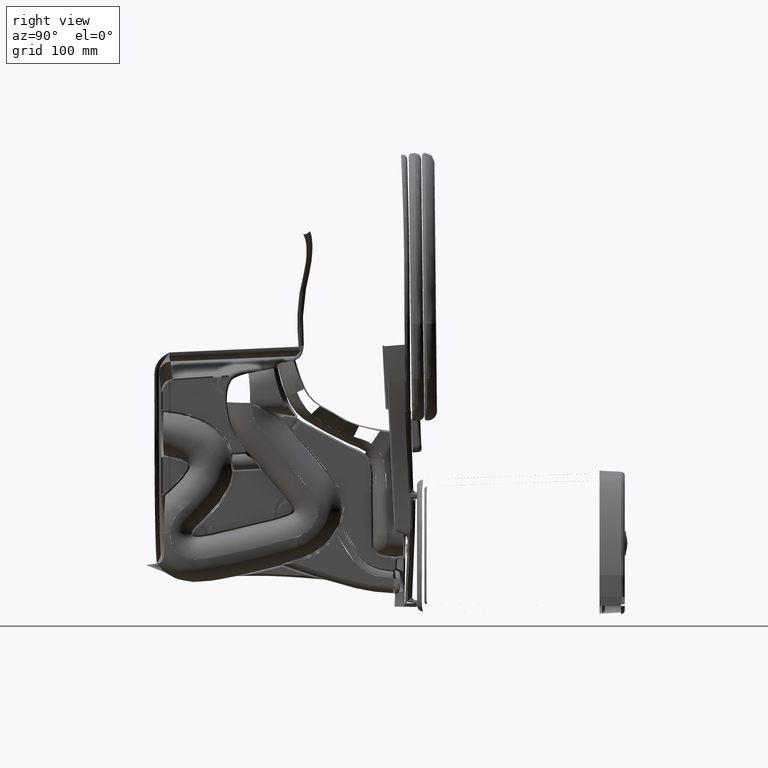
[diagram: clean part render]
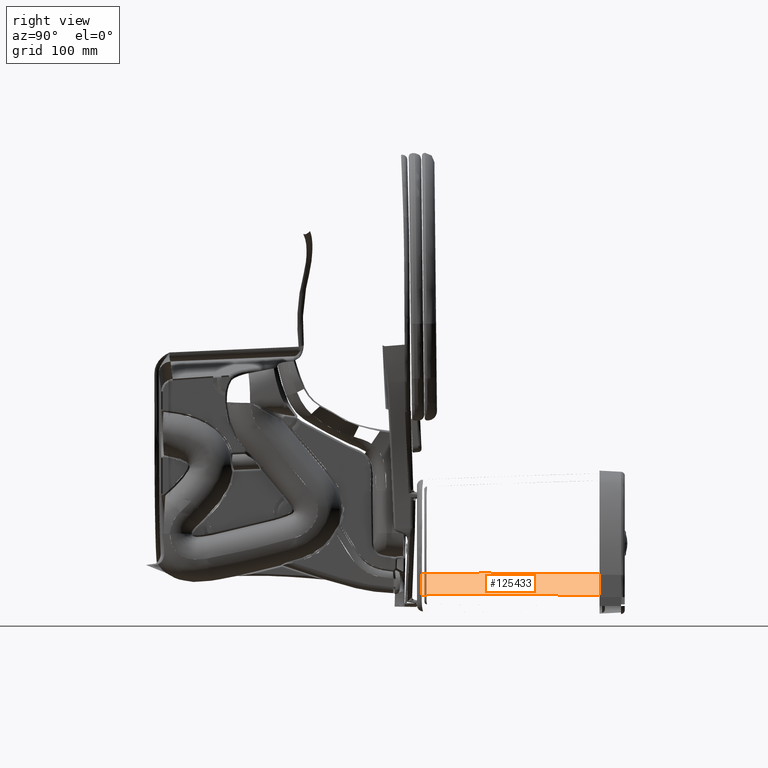
[diagram: same view with one face highlighted and labeled with its STEP entity id]
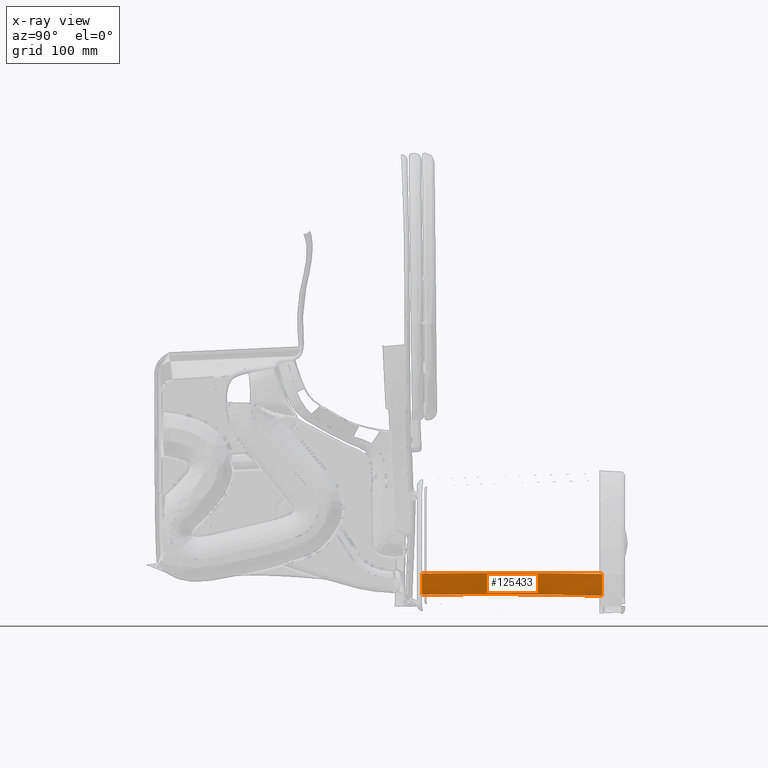
[diagram: x-ray of the same camera — body ghosted, the highlighted face saturated]
A machine part, right view. The second image highlights one B-rep face of the part: STEP entity #125433.
The next image is the same camera in x-ray: the body ghosted, the highlighted face saturated — about 0% of this face is hidden behind the body in this view.
In plain terms, the highlighted face is a freeform B-spline surface patch.
Its self-contained STEP definition (entity closure, byte-faithful):
#2019 = CARTESIAN_POINT ( 'NONE',  ( 8.477269490418109400, 15.78958725036968500, 24.07521670155865900 ) ) ;
#2641 = CARTESIAN_POINT ( 'NONE',  ( 8.870950903418110700, 14.85534883636968600, 29.58341024355866000 ) ) ;
#3946 = CARTESIAN_POINT ( 'NONE',  ( 7.831715338418110400, 14.79968621536968400, 20.21289702055866400 ) ) ;
#4136 = ORIENTED_EDGE ( 'NONE', *, *, #139210, .T. ) ;
#9091 = VERTEX_POINT ( 'NONE', #116583 ) ;
#11198 = CARTESIAN_POINT ( 'NONE',  ( 8.937670803020688800, 15.84088755209015500, 29.51387461043780600 ) ) ;
#11545 = CARTESIAN_POINT ( 'NONE',  ( 8.913009934385272000, 15.31843912803973900, 29.51381473575235100 ) ) ;
#11600 = VERTEX_POINT ( 'NONE', #74309 ) ;
#13434 = CARTESIAN_POINT ( 'NONE',  ( 8.921191182552041400, 15.43457443051940100, 29.51378788051737300 ) ) ;
#13682 = ORIENTED_EDGE ( 'NONE', *, *, #168679, .T. ) ;
#15016 = ORIENTED_EDGE ( 'NONE', *, *, #43135, .T. ) ;
#15027 = CARTESIAN_POINT ( 'NONE',  ( 8.490142791310447000, 14.56082948259823000, 24.07414165726754600 ) ) ;
#16305 = CARTESIAN_POINT ( 'NONE',  ( 8.835795621066015600, 14.62322869970994800, 29.51326678166485000 ) ) ;
#17107 = CARTESIAN_POINT ( 'NONE',  ( 7.806709308418110300, 15.58425076636968500, 20.21143637755866600 ) ) ;
#18901 = EDGE_CURVE ( 'NONE', #87937, #70348, #20594, .T. ) ;
#19041 = CARTESIAN_POINT ( 'NONE',  ( 8.837133857418109500, 14.62432276536968500, 29.58344020755866300 ) ) ;
#20594 = B_SPLINE_CURVE_WITH_KNOTS ( 'NONE', 3,
 ( #148455, #103837, #13434, #162242 ),
 .UNSPECIFIED., .F., .F.,
 ( 4, 4 ),
 ( 0.0000000000000000000, 1.000000000000000000 ),
 .UNSPECIFIED. ) ;
#24543 = B_SPLINE_CURVE_WITH_KNOTS ( 'NONE', 3,
 ( #160977, #56729, #160325, #85607 ),
 .UNSPECIFIED., .F., .F.,
 ( 4, 4 ),
 ( 0.0000000000000000000, 1.000000000000000000 ),
 .UNSPECIFIED. ) ;
#25686 = CARTESIAN_POINT ( 'NONE',  ( 8.934918540221051600, 15.72487079146830500, 29.51379129369322400 ) ) ;
#26859 = CARTESIAN_POINT ( 'NONE',  ( 8.835795621066015600, 14.62322869970994800, 29.51326678166485000 ) ) ;
#27546 = CARTESIAN_POINT ( 'NONE',  ( 8.906629441139008600, 15.23580591161292800, 29.51378188216104800 ) ) ;
#28208 = CARTESIAN_POINT ( 'NONE',  ( 8.938769661242036000, 15.89887780801059100, 29.51390222791463500 ) ) ;
#29655 = CARTESIAN_POINT ( 'NONE',  ( 7.283131257456397600, 15.67654862292402600, 18.07435062048659100 ) ) ;
#31516 = CARTESIAN_POINT ( 'NONE',  ( 8.935745989418110800, 15.66865057536968400, 29.58331162155866100 ) ) ;
#31626 = CARTESIAN_POINT ( 'NONE',  ( 8.939299124265870600, 16.01473784345250500, 29.51395857675636200 ) ) ;
#31981 = CARTESIAN_POINT ( 'NONE',  ( 8.803665773377641600, 14.59827633188563700, 27.90425342509407600 ) ) ;
#32801 = CARTESIAN_POINT ( 'NONE',  ( 7.831751391418110100, 15.13536453736968600, 20.21215365555866600 ) ) ;
#33442 = CARTESIAN_POINT ( 'NONE',  ( 7.275204077418111500, 15.62242656436968600, 18.00666821355866200 ) ) ;
#34106 = CARTESIAN_POINT ( 'NONE',  ( 8.843429668418110600, 14.82673436736968500, 27.95040079555866100 ) ) ;
#37201 = ORIENTED_EDGE ( 'NONE', *, *, #81276, .T. ) ;
#37855 = CARTESIAN_POINT ( 'NONE',  ( 8.930516019824587200, 15.60877928336031000, 29.51375806566773000 ) ) ;
#41932 = CARTESIAN_POINT ( 'NONE',  ( 8.880583417663610000, 14.97032761287832200, 29.51351062047755000 ) ) ;
#43135 = EDGE_CURVE ( 'NONE', #168678, #150301, #24543, .T. ) ;
#43197 = VERTEX_POINT ( 'NONE', #118326 ) ;
#44008 = CARTESIAN_POINT ( 'NONE',  ( 7.340885520584215000, 14.88740163530997200, 18.07762019376235000 ) ) ;
#46078 = CARTESIAN_POINT ( 'NONE',  ( 8.461990870960811200, 15.90306541174322100, 24.07547310828912800 ) ) ;
#46588 = CARTESIAN_POINT ( 'NONE',  ( 7.826724627418109900, 14.57545690136968600, 20.21344017655866300 ) ) ;
#49148 = CARTESIAN_POINT ( 'NONE',  ( 7.783007406418110300, 15.80910939736968300, 20.21119088655866100 ) ) ;
#49704 = EDGE_CURVE ( 'NONE', #133889, #112858, #68656, .T. ) ;
#56729 = CARTESIAN_POINT ( 'NONE',  ( 7.259535265368007200, 15.86574376553801200, 18.07416561920724600 ) ) ;
#57766 = CARTESIAN_POINT ( 'NONE',  ( 7.345192221820237700, 14.74951525574668000, 18.07838531144726700 ) ) ;
#58096 = ORIENTED_EDGE ( 'NONE', *, *, #173432, .T. ) ;
#58911 = CARTESIAN_POINT ( 'NONE',  ( 7.243006829688488000, 15.95915654998217700, 18.07433659830075000 ) ) ;
#60931 = EDGE_CURVE ( 'NONE', #145732, #9091, #137025, .T. ) ;
#64234 = CARTESIAN_POINT ( 'NONE',  ( 7.246400526418110400, 15.84858729436968400, 18.00664253755866200 ) ) ;
#65565 = B_SPLINE_CURVE_WITH_KNOTS ( 'NONE', 3,
 ( #160054, #25686, #177705, #119366 ),
 .UNSPECIFIED., .F., .F.,
 ( 4, 4 ),
 ( 0.0000000000000000000, 1.000000000000000000 ),
 .UNSPECIFIED. ) ;
#66686 = EDGE_CURVE ( 'NONE', #70348, #11600, #131929, .T. ) ;
#68656 = B_SPLINE_CURVE_WITH_KNOTS ( 'NONE', 3,
 ( #11198, #28208, #133071, #132428 ),
 .UNSPECIFIED., .F., .F.,
 ( 4, 4 ),
 ( 0.0000000000000000000, 1.000000000000000000 ),
 .UNSPECIFIED. ) ;
#69390 = ORIENTED_EDGE ( 'NONE', *, *, #66686, .T. ) ;
#70348 = VERTEX_POINT ( 'NONE', #149995 ) ;
#71928 = CARTESIAN_POINT ( 'NONE',  ( 7.313521735616293800, 15.36007613873387700, 18.07535068983933600 ) ) ;
#72257 = B_SPLINE_CURVE_WITH_KNOTS ( 'NONE', 3,
 ( #161259, #130452, #131759, #27546, #159959, #114727 ),
 .UNSPECIFIED., .F., .F.,
 ( 4, 2, 4 ),
 ( 0.0000000000000000000, 0.5000000000000000000, 1.000000000000000000 ),
 .UNSPECIFIED. ) ;
#72833 = CARTESIAN_POINT ( 'NONE',  ( 7.347515454269834700, 14.60059446911406100, 18.07926398331121500 ) ) ;
#73069 = FACE_OUTER_BOUND ( 'NONE', #151999, .T. ) ;
#73212 = CARTESIAN_POINT ( 'NONE',  ( 7.293433461501958700, 15.58659020876707200, 18.07452168709388100 ) ) ;
#74309 = CARTESIAN_POINT ( 'NONE',  ( 8.932716944589683900, 15.66682444986260200, 29.51375012287794400 ) ) ;
#74553 = CARTESIAN_POINT ( 'NONE',  ( 7.347515454269834700, 14.60059446911406100, 18.07926398331121500 ) ) ;
#75897 = CARTESIAN_POINT ( 'NONE',  ( 7.347515454269834700, 14.60059446911406100, 18.07926398331121500 ) ) ;
#76062 = CARTESIAN_POINT ( 'NONE',  ( 7.331304749418110100, 14.60144053036968600, 18.00687621855866300 ) ) ;
#76249 = ORIENTED_EDGE ( 'NONE', *, *, #119657, .T. ) ;
#78185 = B_SPLINE_CURVE_WITH_KNOTS ( 'NONE', 3,
 ( #26859, #131734, #163840, #41932 ),
 .UNSPECIFIED., .F., .F.,
 ( 4, 4 ),
 ( 0.0000000000000000000, 1.000000000000000000 ),
 .UNSPECIFIED. ) ;
#78630 = CARTESIAN_POINT ( 'NONE',  ( 8.923346768418110000, 15.85692391636968600, 27.94846819155866100 ) ) ;
#81276 = EDGE_CURVE ( 'NONE', #150301, #43197, #145898, .T. ) ;
#81496 = ORIENTED_EDGE ( 'NONE', *, *, #116703, .T. ) ;
#85607 = CARTESIAN_POINT ( 'NONE',  ( 7.283131257456397600, 15.67654862292402600, 18.07435062048659100 ) ) ;
#87937 = VERTEX_POINT ( 'NONE', #11545 ) ;
#90643 = CARTESIAN_POINT ( 'NONE',  ( 7.774500921722801800, 15.92091273763633200, 20.25702374956273700 ) ) ;
#91152 = CARTESIAN_POINT ( 'NONE',  ( 8.492127472418109900, 14.56049892636968400, 24.07272467355866400 ) ) ;
#92419 = CARTESIAN_POINT ( 'NONE',  ( 7.766224512418110000, 15.92113047736968700, 20.21110189155865900 ) ) ;
#93085 = CARTESIAN_POINT ( 'NONE',  ( 8.940144558418111800, 15.90077988736968700, 29.58328773055866300 ) ) ;
#93731 = CARTESIAN_POINT ( 'NONE',  ( 8.497520345418111600, 15.56459411636968700, 24.07486125555866300 ) ) ;
#102994 = CARTESIAN_POINT ( 'NONE',  ( 7.329149855721428100, 15.14065937570566300, 18.07631628836600500 ) ) ;
#103837 = CARTESIAN_POINT ( 'NONE',  ( 8.917364913902220600, 15.37650076521299300, 29.51380120725650300 ) ) ;
#106237 = CARTESIAN_POINT ( 'NONE',  ( 8.463384927418109900, 15.90254688236968600, 24.07537191455865900 ) ) ;
#106387 = CARTESIAN_POINT ( 'NONE',  ( 8.939299124265870600, 16.01473784345250500, 29.51395857675636200 ) ) ;
#106880 = CARTESIAN_POINT ( 'NONE',  ( 7.315109601418110500, 15.16884596336968500, 18.00674285455866300 ) ) ;
#112858 = VERTEX_POINT ( 'NONE', #106387 ) ;
#114727 = CARTESIAN_POINT ( 'NONE',  ( 8.913009934385272000, 15.31843912803973900, 29.51381473575235100 ) ) ;
#116583 = CARTESIAN_POINT ( 'NONE',  ( 8.835795621066015600, 14.62322869970994800, 29.51326678166485000 ) ) ;
#116703 = EDGE_CURVE ( 'NONE', #11600, #133889, #65565, .T. ) ;
#118320 = B_SPLINE_SURFACE_WITH_KNOTS ( 'NONE', 3, 3, ( 
 ( #122605, #93085, #31516, #152769, #2641, #19041 ),
 ( #123256, #78630, #183558, #181615, #34106, #182917 ),
 ( #106237, #2019, #93731, #138988, #154065, #91152 ),
 ( #92419, #49148, #17107, #32801, #3946, #46588 ),
 ( #121965, #64234, #33442, #106880, #138338, #76062 ) ),
 .UNSPECIFIED., .F., .F., .F.,
 ( 4, 1, 4 ),
 ( 4, 1, 1, 4 ),
 ( 0.008823162618072999700, 0.4161931364479999900, 0.9799368353490000000 ),
 ( 0.5695983742639999500, 0.5772994304599999800, 0.5850004866550000400, 0.6004025990460000200 ),
 .UNSPECIFIED. ) ;
#118326 = CARTESIAN_POINT ( 'NONE',  ( 7.313521735616293800, 15.36007613873387700, 18.07535068983933600 ) ) ;
#119366 = CARTESIAN_POINT ( 'NONE',  ( 8.937670803020688800, 15.84088755209015500, 29.51387461043780600 ) ) ;
#119657 = EDGE_CURVE ( 'NONE', #43197, #145732, #125506, .T. ) ;
#121965 = CARTESIAN_POINT ( 'NONE',  ( 7.226475469418111300, 15.96035196236968500, 18.00663317555866500 ) ) ;
#122605 = CARTESIAN_POINT ( 'NONE',  ( 8.940130433418110200, 16.01662950736968200, 29.58327677755866200 ) ) ;
#123256 = CARTESIAN_POINT ( 'NONE',  ( 8.922998341418109500, 15.97179239536968600, 27.94829522455866000 ) ) ;
#125433 = ADVANCED_FACE ( 'NONE', ( #73069 ), #118320, .T. ) ;
#125506 = B_SPLINE_CURVE_WITH_KNOTS ( 'NONE', 3,
 ( #173850, #177087, #102994, #44008, #57766, #72833 ),
 .UNSPECIFIED., .F., .F.,
 ( 4, 2, 4 ),
 ( 0.0000000000000000000, 0.5000000000000000000, 1.000000000000000000 ),
 .UNSPECIFIED. ) ;
#130452 = CARTESIAN_POINT ( 'NONE',  ( 8.889505373070226900, 15.05056679294402700, 29.51360685740144500 ) ) ;
#131734 = CARTESIAN_POINT ( 'NONE',  ( 8.847759728231769900, 14.70471350699541100, 29.51324973748534200 ) ) ;
#131759 = CARTESIAN_POINT ( 'NONE',  ( 8.896217969577513400, 15.11973884693407800, 29.51368040784941700 ) ) ;
#131929 = B_SPLINE_CURVE_WITH_KNOTS ( 'NONE', 3,
 ( #156563, #141472, #37855, #140826 ),
 .UNSPECIFIED., .F., .F.,
 ( 4, 4 ),
 ( 0.0000000000000000000, 1.000000000000000000 ),
 .UNSPECIFIED. ) ;
#132428 = CARTESIAN_POINT ( 'NONE',  ( 8.939299124265870600, 16.01473784345250500, 29.51395857675636200 ) ) ;
#133071 = CARTESIAN_POINT ( 'NONE',  ( 8.939314362879381200, 15.95683285044043700, 29.51393020051910600 ) ) ;
#133366 = VERTEX_POINT ( 'NONE', #186708 ) ;
#133889 = VERTEX_POINT ( 'NONE', #166923 ) ;
#137025 = B_SPLINE_CURVE_WITH_KNOTS ( 'NONE', 3,
 ( #75897, #180826, #15027, #31981, #16305 ),
 .UNSPECIFIED., .F., .F.,
 ( 4, 1, 4 ),
 ( 0.01498679290886033600, 0.5725668615190731000, 0.9740998150413950900 ),
 .UNSPECIFIED. ) ;
#138338 = CARTESIAN_POINT ( 'NONE',  ( 7.327774868418110500, 14.82807187436968700, 18.00681995155866100 ) ) ;
#138988 = CARTESIAN_POINT ( 'NONE',  ( 8.512789883418109900, 15.11706978936968500, 24.07400725855866200 ) ) ;
#139210 = EDGE_CURVE ( 'NONE', #133366, #87937, #72257, .T. ) ;
#140826 = CARTESIAN_POINT ( 'NONE',  ( 8.932716944589683900, 15.66682444986260200, 29.51375012287794400 ) ) ;
#141472 = CARTESIAN_POINT ( 'NONE',  ( 8.927766739870657300, 15.55071368615054100, 29.51376630932788500 ) ) ;
#145732 = VERTEX_POINT ( 'NONE', #74553 ) ;
#145898 = B_SPLINE_CURVE_WITH_KNOTS ( 'NONE', 3,
 ( #156622, #73212, #177474, #71928 ),
 .UNSPECIFIED., .F., .F.,
 ( 4, 4 ),
 ( 0.0000000000000000000, 1.000000000000000000 ),
 .UNSPECIFIED. ) ;
#148455 = CARTESIAN_POINT ( 'NONE',  ( 8.913009934385272000, 15.31843912803973900, 29.51381473575235100 ) ) ;
#149995 = CARTESIAN_POINT ( 'NONE',  ( 8.924478921637327000, 15.49264389160746400, 29.51377480472362400 ) ) ;
#150301 = VERTEX_POINT ( 'NONE', #29655 ) ;
#151615 = CARTESIAN_POINT ( 'NONE',  ( 8.917540029405618200, 15.97097438956442700, 27.90237153276374500 ) ) ;
#151999 = EDGE_LOOP ( 'NONE', ( #81496, #191984, #58096, #15016, #37201, #76249, #161142, #13682, #4136, #184297, #69390 ) ) ;
#152769 = CARTESIAN_POINT ( 'NONE',  ( 8.909574502418111700, 15.20368022236968600, 29.58336538655866100 ) ) ;
#154065 = CARTESIAN_POINT ( 'NONE',  ( 8.503997364418111700, 14.78375129536968500, 24.07324736355866400 ) ) ;
#156563 = CARTESIAN_POINT ( 'NONE',  ( 8.924478921637327000, 15.49264389160746400, 29.51377480472362400 ) ) ;
#156622 = CARTESIAN_POINT ( 'NONE',  ( 7.283131257456397600, 15.67654862292402600, 18.07435062048659100 ) ) ;
#159959 = CARTESIAN_POINT ( 'NONE',  ( 8.910329331763515300, 15.28270314712375800, 29.51380979879763400 ) ) ;
#160054 = CARTESIAN_POINT ( 'NONE',  ( 8.932716944589683900, 15.66682444986260200, 29.51375012287794400 ) ) ;
#160325 = CARTESIAN_POINT ( 'NONE',  ( 7.272277860218613600, 15.77132004383501100, 18.07417040661010800 ) ) ;
#160977 = CARTESIAN_POINT ( 'NONE',  ( 7.243006829688488000, 15.95915654998217700, 18.07433659830075000 ) ) ;
#161142 = ORIENTED_EDGE ( 'NONE', *, *, #60931, .T. ) ;
#161259 = CARTESIAN_POINT ( 'NONE',  ( 8.880583417663610000, 14.97032761287832200, 29.51351062047755000 ) ) ;
#162242 = CARTESIAN_POINT ( 'NONE',  ( 8.924478921637327000, 15.49264389160746400, 29.51377480472362400 ) ) ;
#163840 = CARTESIAN_POINT ( 'NONE',  ( 8.863903569366206300, 14.82031819310176400, 29.51333070503515900 ) ) ;
#166037 = CARTESIAN_POINT ( 'NONE',  ( 7.243006829688488000, 15.95915654998217700, 18.07433659830075000 ) ) ;
#166923 = CARTESIAN_POINT ( 'NONE',  ( 8.937670803020688800, 15.84088755209015500, 29.51387461043780600 ) ) ;
#168678 = VERTEX_POINT ( 'NONE', #58911 ) ;
#168679 = EDGE_CURVE ( 'NONE', #9091, #133366, #78185, .T. ) ;
#173432 = EDGE_CURVE ( 'NONE', #112858, #168678, #187638, .T. ) ;
#173850 = CARTESIAN_POINT ( 'NONE',  ( 7.313521735616293800, 15.36007613873387700, 18.07535068983933600 ) ) ;
#177087 = CARTESIAN_POINT ( 'NONE',  ( 7.321734724236871500, 15.25603455447412000, 18.07577746837818800 ) ) ;
#177474 = CARTESIAN_POINT ( 'NONE',  ( 7.303969220114119300, 15.48108678350483600, 18.07485431249444500 ) ) ;
#177705 = CARTESIAN_POINT ( 'NONE',  ( 8.936571752187443700, 15.78289677019357000, 29.51383277341016900 ) ) ;
#180826 = CARTESIAN_POINT ( 'NONE',  ( 7.835157110654540300, 14.57526916978066500, 20.26243046981682000 ) ) ;
#181615 = CARTESIAN_POINT ( 'NONE',  ( 8.886925441418110700, 15.16917735636968500, 27.94969354355866300 ) ) ;
#182917 = CARTESIAN_POINT ( 'NONE',  ( 8.807469235418111000, 14.59873404436968700, 27.95087309655866300 ) ) ;
#183558 = CARTESIAN_POINT ( 'NONE',  ( 8.918363724418108900, 15.62745638136968700, 27.94884531755866100 ) ) ;
#184297 = ORIENTED_EDGE ( 'NONE', *, *, #18901, .T. ) ;
#186708 = CARTESIAN_POINT ( 'NONE',  ( 8.880583417663610000, 14.97032761287832200, 29.51351062047755000 ) ) ;
#187638 = B_SPLINE_CURVE_WITH_KNOTS ( 'NONE', 3,
 ( #31626, #151615, #46078, #90643, #166037 ),
 .UNSPECIFIED., .F., .F.,
 ( 4, 1, 4 ),
 ( 0.01458075408355530300, 0.4161931364479999900, 0.9741666578977891100 ),
 .UNSPECIFIED. ) ;
#191984 = ORIENTED_EDGE ( 'NONE', *, *, #49704, .T. ) ;